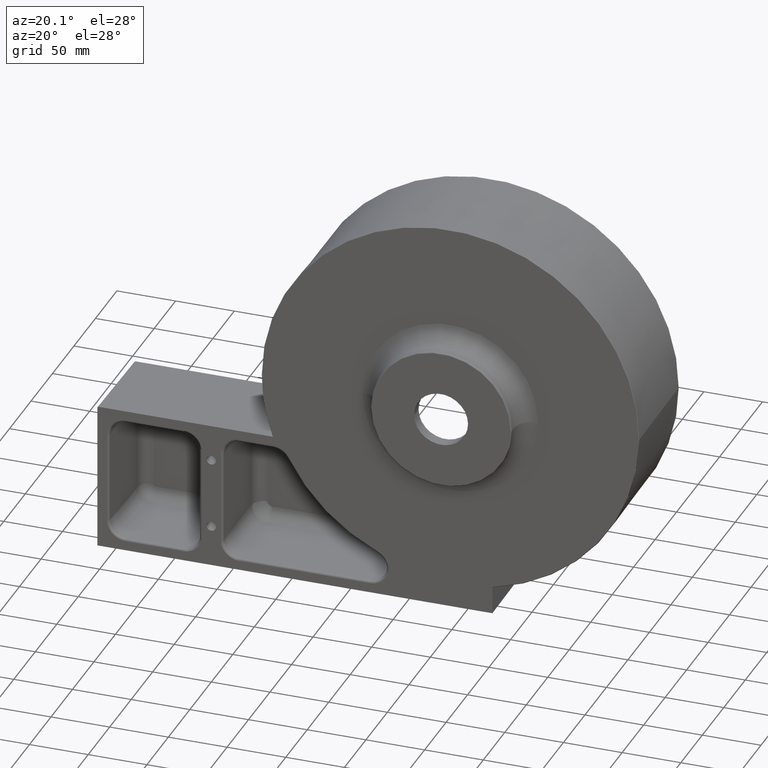
[diagram: clean part render]
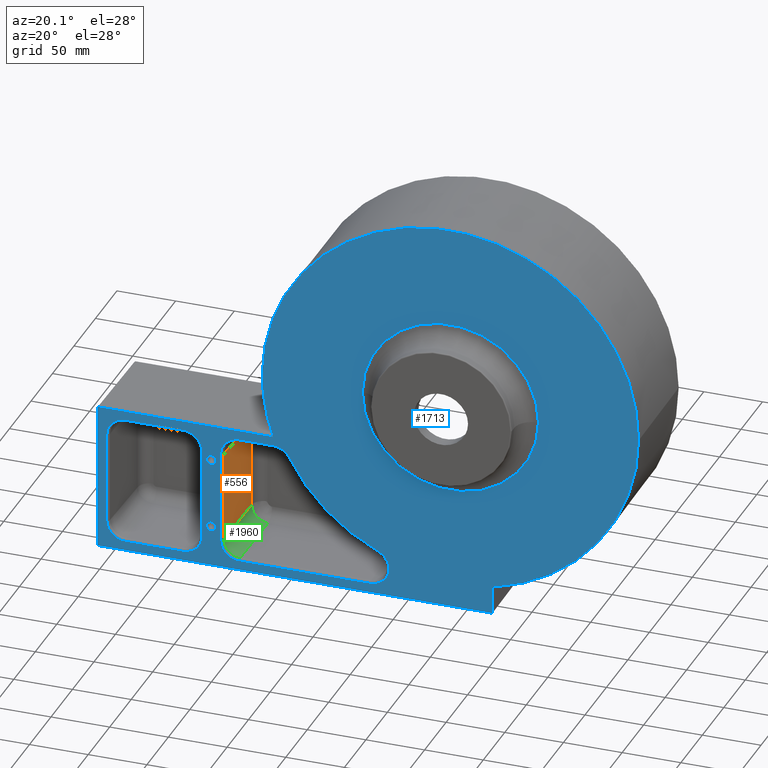
[diagram: same view with three faces highlighted in distinct colors, each labeled with its STEP entity id]
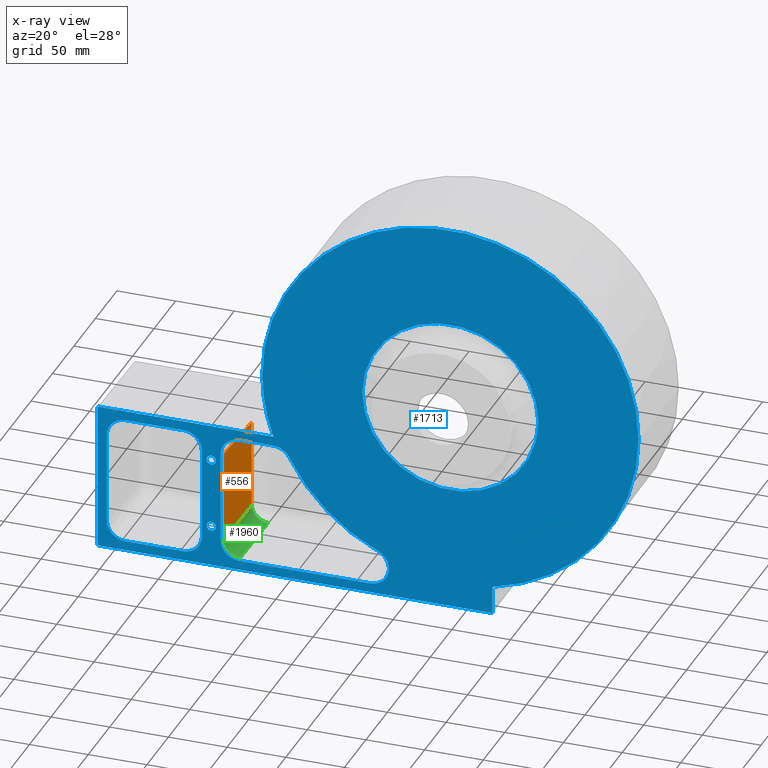
[diagram: x-ray of the same camera — body ghosted, the three highlighted faces saturated]
A machine part, auxiliary view with three faces highlighted in distinct colors.
The next image is the same camera in x-ray (body ghosted, the three faces saturated) — at least one of them is partly hidden behind the body in this view.
Their STEP definitions:

[orange] entity #556 — the highlighted planar face has unit normal (0.9997, -0.0262, -0).
#244 = AXIS2_PLACEMENT_3D ( 'NONE', #1115, #2131, #873 ) ;
#309 = ORIENTED_EDGE ( 'NONE', *, *, #981, .F. ) ;
#353 = VECTOR ( 'NONE', #2916, 1000.000000000000227 ) ;
#556 = ADVANCED_FACE ( 'NONE', ( #1868 ), #3167, .T. ) ;
#635 = DIRECTION ( 'NONE',  ( 0.02616798426497950192, 0.9993150019883697555, -0.02616798426497939783 ) ) ;
#660 = VERTEX_POINT ( 'NONE', #1170 ) ;
#689 = CARTESIAN_POINT ( 'NONE',  ( -52.84608100395885089, 23.74703707613693737, -64.25821623778548997 ) ) ;
#767 = VECTOR ( 'NONE', #2828, 1000.000000000000000 ) ;
#873 = DIRECTION ( 'NONE',  ( -0.02617694830787332949, -0.9996573249755572599, 0.0000000000000000000 ) ) ;
#916 = DIRECTION ( 'NONE',  ( 2.624844657249581056E-16, -3.158525108795066252E-32, 1.000000000000000000 ) ) ;
#981 = EDGE_CURVE ( 'NONE', #2170, #660, #3080, .T. ) ;
#999 = LINE ( 'NONE', #2758, #767 ) ;
#1040 = EDGE_CURVE ( 'NONE', #660, #1652, #2405, .T. ) ;
#1115 = CARTESIAN_POINT ( 'NONE',  ( -52.89708191206660359, 21.79939097275268622, -64.25821623778548997 ) ) ;
#1151 = CARTESIAN_POINT ( 'NONE',  ( -51.26670009962391816, 84.06116045583145535, -154.3744156378994603 ) ) ;
#1170 = CARTESIAN_POINT ( 'NONE',  ( -52.84608100395885089, 23.74703707613693737, -155.9537965422344143 ) ) ;
#1193 = VECTOR ( 'NONE', #635, 1000.000000000000227 ) ;
#1413 = LINE ( 'NONE', #1900, #1193 ) ;
#1518 = VECTOR ( 'NONE', #916, 1000.000000000000000 ) ;
#1545 = CARTESIAN_POINT ( 'NONE',  ( -52.83425721113196971, 24.19856950724317457, -155.9419727494075119 ) ) ;
#1652 = VERTEX_POINT ( 'NONE', #1787 ) ;
#1770 = ORIENTED_EDGE ( 'NONE', *, *, #1994, .F. ) ;
#1787 = CARTESIAN_POINT ( 'NONE',  ( -52.84608100395885089, 23.74703707613693737, -78.30441969555103299 ) ) ;
#1868 = FACE_OUTER_BOUND ( 'NONE', #2665, .T. ) ;
#1900 = CARTESIAN_POINT ( 'NONE',  ( -52.90666531455509869, 21.43341559689432074, -78.24383538495480650 ) ) ;
#1994 = EDGE_CURVE ( 'NONE', #2385, #2170, #999, .T. ) ;
#2108 = ORIENTED_EDGE ( 'NONE', *, *, #2178, .F. ) ;
#2131 = DIRECTION ( 'NONE',  ( 0.9996573249755573709, -0.02617694830787333296, -2.623945188542499751E-16 ) ) ;
#2170 = VERTEX_POINT ( 'NONE', #1151 ) ;
#2178 = EDGE_CURVE ( 'NONE', #1652, #2385, #1413, .T. ) ;
#2385 = VERTEX_POINT ( 'NONE', #2809 ) ;
#2405 = LINE ( 'NONE', #689, #1518 ) ;
#2477 = ORIENTED_EDGE ( 'NONE', *, *, #1040, .F. ) ;
#2665 = EDGE_LOOP ( 'NONE', ( #309, #1770, #2108, #2477 ) ) ;
#2758 = CARTESIAN_POINT ( 'NONE',  ( -51.26670009962391816, 84.06116045583142693, -154.1194110973607110 ) ) ;
#2809 = CARTESIAN_POINT ( 'NONE',  ( -51.26670009962391816, 84.06116045583144114, -79.88380059988597282 ) ) ;
#2828 = DIRECTION ( 'NONE',  ( -2.624844657249581056E-16, 3.158525108795066252E-32, -1.000000000000000000 ) ) ;
#2916 = DIRECTION ( 'NONE',  ( -0.02616798426497951580, -0.9993150019883697555, -0.02616798426497939090 ) ) ;
#3080 = LINE ( 'NONE', #1545, #353 ) ;
#3167 = PLANE ( 'NONE',  #244 ) ;

[blue] entity #1713 — the highlighted planar face has unit normal (-0, -1, 0).
#9 = ORIENTED_EDGE ( 'NONE', *, *, #2908, .F. ) ;
#35 = LINE ( 'NONE', #648, #2687 ) ;
#50 = EDGE_CURVE ( 'NONE', #2653, #2890, #2028, .T. ) ;
#56 = CARTESIAN_POINT ( 'NONE',  ( -70.94876817022324644, 21.79939097275268622, -155.9537965422344143 ) ) ;
#59 = VECTOR ( 'NONE', #1752, 1000.000000000000000 ) ;
#70 = CARTESIAN_POINT ( 'NONE',  ( -38.85087845430101794, 21.79939097275268267, -62.30990249594211150 ) ) ;
#71 = CARTESIAN_POINT ( 'NONE',  ( -38.85087845430107478, 21.79939097275268267, -171.9483137418433216 ) ) ;
#74 = CARTESIAN_POINT ( 'NONE',  ( -54.84539565391000338, 21.79939097275268622, -155.9537965422344143 ) ) ;
#82 = CIRCLE ( 'NONE', #1937, 75.00000000000004263 ) ;
#85 = DIRECTION ( 'NONE',  ( -1.000000000000000000, 0.0000000000000000000, 0.0000000000000000000 ) ) ;
#107 = CARTESIAN_POINT ( 'NONE',  ( -158.8971199890025048, 21.79939097275269688, -54.25821623778548997 ) ) ;
#109 = EDGE_CURVE ( 'NONE', #943, #363, #361, .T. ) ;
#117 = LINE ( 'NONE', #2139, #1746 ) ;
#129 = EDGE_LOOP ( 'NONE', ( #1783, #2961, #421, #510, #1000, #1865, #1439, #1414, #1008 ) ) ;
#159 = CIRCLE ( 'NONE', #371, 15.94831374184332873 ) ;
#165 = CIRCLE ( 'NONE', #2997, 160.3160192545639404 ) ;
#170 =( BOUNDED_CURVE ( )  B_SPLINE_CURVE ( 3, ( #2325, #1799, #558, #2341 ),
 .UNSPECIFIED., .F., .T. ) 
 B_SPLINE_CURVE_WITH_KNOTS ( ( 4, 4 ),
 ( 5.498129760120311182, 6.283185307179586232 ),
 .UNSPECIFIED. ) 
 CURVE ( )  GEOMETRIC_REPRESENTATION_ITEM ( )  RATIONAL_B_SPLINE_CURVE ( ( 1.000000000000000000, 0.9492967171685294803, 0.9492967171685294803, 1.000000000000000000 ) ) 
 REPRESENTATION_ITEM ( '' )  );
#178 = ORIENTED_EDGE ( 'NONE', *, *, #1332, .F. ) ;
#200 = VERTEX_POINT ( 'NONE', #954 ) ;
#201 = CARTESIAN_POINT ( 'NONE',  ( -38.90187936240877065, 21.79939097275268267, -62.30990249594211150 ) ) ;
#202 = VERTEX_POINT ( 'NONE', #1472 ) ;
#212 = VERTEX_POINT ( 'NONE', #2681 ) ;
#255 = ORIENTED_EDGE ( 'NONE', *, *, #433, .F. ) ;
#273 = CARTESIAN_POINT ( 'NONE',  ( -75.63278917098348586, 21.79939097275268622, -167.2642927410831248 ) ) ;
#328 = DIRECTION ( 'NONE',  ( -1.000000000000000000, 2.175431840703557968E-16, -5.221036417688538926E-15 ) ) ;
#330 = EDGE_CURVE ( 'NONE', #461, #2290, #2314, .T. ) ;
#334 = CARTESIAN_POINT ( 'NONE',  ( -75.63278917098348586, 21.79939097275268622, -167.2642927410831248 ) ) ;
#336 = VERTEX_POINT ( 'NONE', #273 ) ;
#338 = LINE ( 'NONE', #2646, #2402 ) ;
#343 = ORIENTED_EDGE ( 'NONE', *, *, #3160, .T. ) ;
#361 = LINE ( 'NONE', #862, #1195 ) ;
#363 = VERTEX_POINT ( 'NONE', #990 ) ;
#371 = AXIS2_PLACEMENT_3D ( 'NONE', #446, #1263, #3282 ) ;
#388 = EDGE_CURVE ( 'NONE', #524, #2991, #564, .T. ) ;
#414 = EDGE_CURVE ( 'NONE', #1721, #1523, #2974, .T. ) ;
#421 = ORIENTED_EDGE ( 'NONE', *, *, #2917, .F. ) ;
#433 = EDGE_CURVE ( 'NONE', #2890, #821, #1258, .T. ) ;
#446 = CARTESIAN_POINT ( 'NONE',  ( -135.8970819120665965, 21.79939097275269688, -155.9999999999999716 ) ) ;
#449 = DIRECTION ( 'NONE',  ( -1.214623636765614367E-16, -1.000000000000000000, -0.0000000000000000000 ) ) ;
#459 = CARTESIAN_POINT ( 'NONE',  ( -10.42723211647070336, 21.79939097275267912, -78.25821623778547576 ) ) ;
#461 = VERTEX_POINT ( 'NONE', #2849 ) ;
#465 = CARTESIAN_POINT ( 'NONE',  ( -50.16137465314974264, 21.79939097275267912, -66.99392349670230828 ) ) ;
#470 = DIRECTION ( 'NONE',  ( -1.000000000000000000, 1.123760614446561448E-16, 0.0000000000000000000 ) ) ;
#483 = CARTESIAN_POINT ( 'NONE',  ( -159.8970819120666818, 21.79939097275270043, -55.25817816084966694 ) ) ;
#500 = LINE ( 'NONE', #1515, #1624 ) ;
#510 = ORIENTED_EDGE ( 'NONE', *, *, #1405, .F. ) ;
#514 = VERTEX_POINT ( 'NONE', #1088 ) ;
#521 = LINE ( 'NONE', #1237, #59 ) ;
#524 = VERTEX_POINT ( 'NONE', #2361 ) ;
#541 = EDGE_CURVE ( 'NONE', #699, #993, #2226, .T. ) ;
#558 = CARTESIAN_POINT ( 'NONE',  ( -78.67207643849769738, 21.79939097275268622, -170.3035800085973790 ) ) ;
#564 = CIRCLE ( 'NONE', #2044, 75.00000000000004263 ) ;
#567 = DIRECTION ( 'NONE',  ( 1.000000000000000000, -1.298477956757840866E-16, 0.0000000000000000000 ) ) ;
#570 = CARTESIAN_POINT ( 'NONE',  ( -70.94876817022324644, 21.79939097275268622, -155.9537965422344143 ) ) ;
#592 = EDGE_LOOP ( 'NONE', ( #2903, #2798, #1646, #1551, #343, #1690, #3127, #1071 ) ) ;
#598 = DIRECTION ( 'NONE',  ( -1.000000000000000000, 0.0000000000000000000, 0.0000000000000000000 ) ) ;
#604 = DIRECTION ( 'NONE',  ( -1.214623636765614367E-16, -1.000000000000000000, 0.0000000000000000000 ) ) ;
#606 = VERTEX_POINT ( 'NONE', #1154 ) ;
#608 = DIRECTION ( 'NONE',  ( 1.000000000000000000, -1.214623636765614367E-16, -1.328815102230828392E-16 ) ) ;
#630 = ORIENTED_EDGE ( 'NONE', *, *, #388, .F. ) ;
#634 = CARTESIAN_POINT ( 'NONE',  ( -158.8971199890025048, 21.79939097275269688, -54.25821623778548997 ) ) ;
#648 = CARTESIAN_POINT ( 'NONE',  ( -54.84539565390994653, 21.79939097275268622, 5.136561069101757962E-14 ) ) ;
#649 = VERTEX_POINT ( 'NONE', #907 ) ;
#661 = AXIS2_PLACEMENT_3D ( 'NONE', #963, #449, #3044 ) ;
#666 = AXIS2_PLACEMENT_3D ( 'NONE', #1104, #604, #1089 ) ;
#699 = VERTEX_POINT ( 'NONE', #483 ) ;
#723 =( BOUNDED_CURVE ( )  B_SPLINE_CURVE ( 3, ( #1266, #1012, #2278, #465 ),
 .UNSPECIFIED., .F., .T. ) 
 B_SPLINE_CURVE_WITH_KNOTS ( ( 4, 4 ),
 ( 5.498129760120305853, 6.283185307179586232 ),
 .UNSPECIFIED. ) 
 CURVE ( )  GEOMETRIC_REPRESENTATION_ITEM ( )  RATIONAL_B_SPLINE_CURVE ( ( 1.000000000000000000, 0.9492967171685287031, 0.9492967171685287031, 1.000000000000000000 ) ) 
 REPRESENTATION_ITEM ( '' )  );
#749 = CARTESIAN_POINT ( 'NONE',  ( -70.94876817022327486, 21.79939097275268622, -78.30441969555101878 ) ) ;
#763 = VERTEX_POINT ( 'NONE', #2791 ) ;
#777 = DIRECTION ( 'NONE',  ( -1.214623636765614367E-16, -1.000000000000000000, -0.0000000000000000000 ) ) ;
#781 = EDGE_CURVE ( 'NONE', #1806, #699, #500, .T. ) ;
#783 = CARTESIAN_POINT ( 'NONE',  ( -135.8970819120665965, 21.79939097275269688, -78.25821623778544733 ) ) ;
#801 = DIRECTION ( 'NONE',  ( 1.214623636765614367E-16, 1.000000000000000000, -0.0000000000000000000 ) ) ;
#812 = DIRECTION ( 'NONE',  ( 1.214623636765614367E-16, 1.000000000000000000, -0.0000000000000000000 ) ) ;
#819 = CARTESIAN_POINT ( 'NONE',  ( -53.20066192066398258, 21.79939097275268267, -70.03321076421654823 ) ) ;
#821 = VERTEX_POINT ( 'NONE', #1530 ) ;
#833 = CARTESIAN_POINT ( 'NONE',  ( -62.89708191206663912, 21.79939097275268622, -145.0000000000000000 ) ) ;
#858 = FACE_BOUND ( 'NONE', #2137, .T. ) ;
#861 = EDGE_CURVE ( 'NONE', #202, #1053, #1059, .T. ) ;
#862 = CARTESIAN_POINT ( 'NONE',  ( 72.49598997698230107, 21.79939097275266846, -171.9483137418433500 ) ) ;
#881 = EDGE_CURVE ( 'NONE', #336, #895, #1993, .T. ) ;
#895 = VERTEX_POINT ( 'NONE', #570 ) ;
#896 = DIRECTION ( 'NONE',  ( -1.214623636765614367E-16, -1.000000000000000000, 0.0000000000000000000 ) ) ;
#907 = CARTESIAN_POINT ( 'NONE',  ( 78.89613193412171199, 21.79939097275266846, -141.3922317195016092 ) ) ;
#914 = EDGE_LOOP ( 'NONE', ( #2513, #2241 ) ) ;
#923 = VECTOR ( 'NONE', #1954, 1000.000000000000000 ) ;
#939 = CARTESIAN_POINT ( 'NONE',  ( 176.5864856123623952, 21.79939097275265780, -180.0000000000000000 ) ) ;
#943 = VERTEX_POINT ( 'NONE', #71 ) ;
#954 = CARTESIAN_POINT ( 'NONE',  ( -135.8970819120667102, 21.79939097275269688, -171.9483137418433216 ) ) ;
#963 = CARTESIAN_POINT ( 'NONE',  ( 140.8447018501478851, 21.79939097275267201, 0.0000000000000000000 ) ) ;
#990 = CARTESIAN_POINT ( 'NONE',  ( 72.49598997698230107, 21.79939097275266846, -171.9483137418433500 ) ) ;
#993 = VERTEX_POINT ( 'NONE', #634 ) ;
#997 = EDGE_CURVE ( 'NONE', #212, #3234, #2154, .T. ) ;
#1000 = ORIENTED_EDGE ( 'NONE', *, *, #861, .F. ) ;
#1002 = DIRECTION ( 'NONE',  ( -1.000000000000000000, 1.214623636765614367E-16, 1.110463690054878025E-16 ) ) ;
#1008 = ORIENTED_EDGE ( 'NONE', *, *, #2806, .F. ) ;
#1010 = DIRECTION ( 'NONE',  ( -1.214623636765614367E-16, -1.000000000000000000, -0.0000000000000000000 ) ) ;
#1012 = CARTESIAN_POINT ( 'NONE',  ( -43.15055210964558086, 21.79939097275268267, -62.30990249594211150 ) ) ;
#1046 = DIRECTION ( 'NONE',  ( -1.214623636765614367E-16, -1.000000000000000000, -0.0000000000000000000 ) ) ;
#1053 = VERTEX_POINT ( 'NONE', #1629 ) ;
#1058 = CIRCLE ( 'NONE', #1480, 3.999999999999989786 ) ;
#1059 =( BOUNDED_CURVE ( )  B_SPLINE_CURVE ( 3, ( #1847, #819, #2336, #1831 ),
 .UNSPECIFIED., .F., .T. ) 
 B_SPLINE_CURVE_WITH_KNOTS ( ( 4, 4 ),
 ( 0.0000000000000000000, 0.7850555470592797125 ),
 .UNSPECIFIED. ) 
 CURVE ( )  GEOMETRIC_REPRESENTATION_ITEM ( )  RATIONAL_B_SPLINE_CURVE ( ( 1.000000000000000000, 0.9492967171685287031, 0.9492967171685287031, 1.000000000000000000 ) ) 
 REPRESENTATION_ITEM ( '' )  );
#1061 = DIRECTION ( 'NONE',  ( 1.000000000000000000, -1.214623636765614367E-16, -1.328815102230828392E-16 ) ) ;
#1070 = FACE_OUTER_BOUND ( 'NONE', #592, .T. ) ;
#1071 = ORIENTED_EDGE ( 'NONE', *, *, #541, .F. ) ;
#1088 = CARTESIAN_POINT ( 'NONE',  ( -86.94328536983213951, 21.79939097275268978, -171.9483137418433216 ) ) ;
#1089 = DIRECTION ( 'NONE',  ( -1.000000000000000000, 2.175431840703554270E-16, 0.0000000000000000000 ) ) ;
#1103 = CARTESIAN_POINT ( 'NONE',  ( -159.8970819120666249, 21.79939097275269688, -54.67240479007110565 ) ) ;
#1104 = CARTESIAN_POINT ( 'NONE',  ( 72.49598997698230107, 21.79939097275266846, -155.9999999999999716 ) ) ;
#1118 = CARTESIAN_POINT ( 'NONE',  ( -19.47131740441601622, 21.79939097275269333, -1.966366498742345683E-14 ) ) ;
#1135 = CIRCLE ( 'NONE', #666, 15.94831374184338380 ) ;
#1154 = CARTESIAN_POINT ( 'NONE',  ( -54.84539565391000338, 21.79939097275268622, -155.9537965422344143 ) ) ;
#1160 = ORIENTED_EDGE ( 'NONE', *, *, #50, .F. ) ;
#1166 = VECTOR ( 'NONE', #2497, 1000.000000000000000 ) ;
#1191 = CARTESIAN_POINT ( 'NONE',  ( -10.01043396008369157, 21.79939097275268978, -54.25821623778548997 ) ) ;
#1195 = VECTOR ( 'NONE', #608, 1000.000000000000000 ) ;
#1197 = VECTOR ( 'NONE', #1002, 1000.000000000000000 ) ;
#1221 = CARTESIAN_POINT ( 'NONE',  ( -86.94328536983222477, 21.79939097275268978, -62.30990249594210439 ) ) ;
#1237 = CARTESIAN_POINT ( 'NONE',  ( -151.8453956539098897, 21.79939097275269688, -155.9999999999999716 ) ) ;
#1258 = LINE ( 'NONE', #2271, #1197 ) ;
#1263 = DIRECTION ( 'NONE',  ( -1.214623636765614367E-16, -1.000000000000000000, 0.0000000000000000000 ) ) ;
#1266 = CARTESIAN_POINT ( 'NONE',  ( -38.85087845430101794, 21.79939097275268267, -62.30990249594211150 ) ) ;
#1268 = EDGE_CURVE ( 'NONE', #763, #2769, #1556, .T. ) ;
#1272 = EDGE_CURVE ( 'NONE', #2423, #202, #723, .T. ) ;
#1314 = ORIENTED_EDGE ( 'NONE', *, *, #2914, .F. ) ;
#1320 = CARTESIAN_POINT ( 'NONE',  ( -72.59350190346927434, 21.79939097275268978, -164.2250054735688991 ) ) ;
#1329 = CIRCLE ( 'NONE', #2500, 15.94831374184335715 ) ;
#1332 = EDGE_CURVE ( 'NONE', #200, #514, #2089, .T. ) ;
#1333 = EDGE_CURVE ( 'NONE', #1843, #1806, #2415, .T. ) ;
#1355 = DIRECTION ( 'NONE',  ( 0.0000000000000000000, 0.0000000000000000000, 1.000000000000000000 ) ) ;
#1363 = CARTESIAN_POINT ( 'NONE',  ( -70.94876817022327486, 21.79939097275268267, -68.93371927133823363 ) ) ;
#1367 = DIRECTION ( 'NONE',  ( 1.000000000000000000, -1.387778780781444936E-16, 0.0000000000000000000 ) ) ;
#1375 = CARTESIAN_POINT ( 'NONE',  ( -159.4828933597810590, 21.79939097275269688, -54.25821623778551839 ) ) ;
#1377 = ORIENTED_EDGE ( 'NONE', *, *, #2573, .F. ) ;
#1405 = EDGE_CURVE ( 'NONE', #1053, #606, #35, .T. ) ;
#1414 = ORIENTED_EDGE ( 'NONE', *, *, #330, .F. ) ;
#1431 = CIRCLE ( 'NONE', #2346, 154.3677055127205620 ) ;
#1438 = CARTESIAN_POINT ( 'NONE',  ( 140.8447018501478851, 21.79939097275266136, -54.25821623778548997 ) ) ;
#1439 = ORIENTED_EDGE ( 'NONE', *, *, #2620, .F. ) ;
#1472 = CARTESIAN_POINT ( 'NONE',  ( -50.16137465314974264, 21.79939097275267912, -66.99392349670230828 ) ) ;
#1480 = AXIS2_PLACEMENT_3D ( 'NONE', #833, #812, #2581 ) ;
#1487 = EDGE_CURVE ( 'NONE', #993, #1523, #2172, .T. ) ;
#1491 = EDGE_LOOP ( 'NONE', ( #255, #1160, #1536, #2704, #1314, #178, #1377, #9, #2740 ) ) ;
#1514 = AXIS2_PLACEMENT_3D ( 'NONE', #3292, #777, #1549 ) ;
#1515 = CARTESIAN_POINT ( 'NONE',  ( -159.8970819120666818, 21.79939097275270043, 0.0000000000000000000 ) ) ;
#1523 = VERTEX_POINT ( 'NONE', #1191 ) ;
#1530 = CARTESIAN_POINT ( 'NONE',  ( -135.8970819120665965, 21.79939097275269688, -62.30990249594209729 ) ) ;
#1536 = ORIENTED_EDGE ( 'NONE', *, *, #3048, .F. ) ;
#1549 = DIRECTION ( 'NONE',  ( 1.000000000000000000, -1.298477956757840866E-16, 0.0000000000000000000 ) ) ;
#1551 = ORIENTED_EDGE ( 'NONE', *, *, #1268, .T. ) ;
#1554 = DIRECTION ( 'NONE',  ( -1.214623636765614367E-16, -1.000000000000000000, 0.0000000000000000000 ) ) ;
#1556 = CIRCLE ( 'NONE', #661, 160.3160192545639404 ) ;
#1559 = DIRECTION ( 'NONE',  ( -1.000000000000000000, 1.242786967863980845E-16, 0.0000000000000000000 ) ) ;
#1605 = CARTESIAN_POINT ( 'NONE',  ( -58.89708191206664623, 21.79939097275268622, -145.0000000000000000 ) ) ;
#1619 = CARTESIAN_POINT ( 'NONE',  ( -54.84539565391001759, 21.79939097275268978, -165.3244969664471853 ) ) ;
#1621 = FACE_BOUND ( 'NONE', #914, .T. ) ;
#1624 = VECTOR ( 'NONE', #2297, 1000.000000000000000 ) ;
#1629 = CARTESIAN_POINT ( 'NONE',  ( -54.84539565390994653, 21.79939097275268622, -78.30441969555103299 ) ) ;
#1641 = DIRECTION ( 'NONE',  ( 0.0000000000000000000, 0.0000000000000000000, -1.000000000000000000 ) ) ;
#1646 = ORIENTED_EDGE ( 'NONE', *, *, #2490, .F. ) ;
#1690 = ORIENTED_EDGE ( 'NONE', *, *, #414, .T. ) ;
#1709 = EDGE_CURVE ( 'NONE', #363, #649, #1135, .T. ) ;
#1713 = ADVANCED_FACE ( 'NONE', ( #858, #1621, #2887, #2613, #1070, #2082 ), #3120, .T. ) ;
#1721 = VERTEX_POINT ( 'NONE', #1118 ) ;
#1746 = VECTOR ( 'NONE', #1641, 1000.000000000000000 ) ;
#1752 = DIRECTION ( 'NONE',  ( 7.140452475472831437E-16, -8.672962353910844267E-32, -1.000000000000000000 ) ) ;
#1766 = CARTESIAN_POINT ( 'NONE',  ( 301.1607211047117971, 21.79939097275265070, 0.0000000000000000000 ) ) ;
#1783 = ORIENTED_EDGE ( 'NONE', *, *, #1709, .F. ) ;
#1794 = DIRECTION ( 'NONE',  ( -2.624844657249581056E-16, 3.188198363533278655E-32, -1.000000000000000000 ) ) ;
#1797 = VERTEX_POINT ( 'NONE', #1605 ) ;
#1799 = CARTESIAN_POINT ( 'NONE',  ( -82.64361171448763344, 21.79939097275268622, -171.9483137418433216 ) ) ;
#1806 = VERTEX_POINT ( 'NONE', #2362 ) ;
#1820 = DIRECTION ( 'NONE',  ( -1.214623636765614367E-16, -1.000000000000000000, 0.0000000000000000000 ) ) ;
#1826 = CARTESIAN_POINT ( 'NONE',  ( 140.8447018501478851, 21.79939097275267201, 0.0000000000000000000 ) ) ;
#1831 = CARTESIAN_POINT ( 'NONE',  ( -54.84539565390994653, 21.79939097275268622, -78.30441969555103299 ) ) ;
#1843 = VERTEX_POINT ( 'NONE', #939 ) ;
#1846 = CARTESIAN_POINT ( 'NONE',  ( 140.8447018501478851, 21.79939097275264359, 0.0000000000000000000 ) ) ;
#1847 = CARTESIAN_POINT ( 'NONE',  ( -50.16137465314974264, 21.79939097275267912, -66.99392349670230828 ) ) ;
#1856 = CARTESIAN_POINT ( 'NONE',  ( -70.94876817022327486, 21.79939097275268622, -78.30441969555101878 ) ) ;
#1861 = CARTESIAN_POINT ( 'NONE',  ( -62.89708191206661070, 21.79939097275268622, -84.99999999999998579 ) ) ;
#1865 = ORIENTED_EDGE ( 'NONE', *, *, #1272, .F. ) ;
#1866 = CARTESIAN_POINT ( 'NONE',  ( 215.8447018501479135, 21.79939097275263649, 0.0000000000000000000 ) ) ;
#1872 = CARTESIAN_POINT ( 'NONE',  ( -77.57258494561943962, 21.79939097275268622, -62.30990249594206887 ) ) ;
#1888 = CARTESIAN_POINT ( 'NONE',  ( 140.8447018501478851, 21.79939097275266136, 0.0000000000000000000 ) ) ;
#1930 = VECTOR ( 'NONE', #1061, 1000.000000000000000 ) ;
#1937 = AXIS2_PLACEMENT_3D ( 'NONE', #1846, #1046, #1367 ) ;
#1954 = DIRECTION ( 'NONE',  ( 1.000000000000000000, -1.214623636765614367E-16, -1.139491522003710415E-19 ) ) ;
#1959 = CARTESIAN_POINT ( 'NONE',  ( -151.8453956539099465, 21.79939097275269688, -78.25821623778541891 ) ) ;
#1984 = CARTESIAN_POINT ( 'NONE',  ( 140.8447018501478851, 21.79939097275266136, 0.0000000000000000000 ) ) ;
#1993 =( BOUNDED_CURVE ( )  B_SPLINE_CURVE ( 3, ( #334, #1320, #2623, #56 ),
 .UNSPECIFIED., .F., .T. ) 
 B_SPLINE_CURVE_WITH_KNOTS ( ( 4, 4 ),
 ( 5.421010862427521184E-16, 0.7850555470592803786 ),
 .UNSPECIFIED. ) 
 CURVE ( )  GEOMETRIC_REPRESENTATION_ITEM ( )  RATIONAL_B_SPLINE_CURVE ( ( 1.000000000000000000, 0.9492967171685287031, 0.9492967171685287031, 1.000000000000000000 ) ) 
 REPRESENTATION_ITEM ( '' )  );
#2004 = ORIENTED_EDGE ( 'NONE', *, *, #997, .T. ) ;
#2006 = LINE ( 'NONE', #201, #1166 ) ;
#2010 = CIRCLE ( 'NONE', #2771, 3.999999999999989786 ) ;
#2028 =( BOUNDED_CURVE ( )  B_SPLINE_CURVE ( 3, ( #1856, #1363, #1872, #2365 ),
 .UNSPECIFIED., .F., .T. ) 
 B_SPLINE_CURVE_WITH_KNOTS ( ( 4, 4 ),
 ( 2.356537106530513626, 3.926648200649075271 ),
 .UNSPECIFIED. ) 
 CURVE ( )  GEOMETRIC_REPRESENTATION_ITEM ( )  RATIONAL_B_SPLINE_CURVE ( ( 1.000000000000000000, 0.8048993373437793863, 0.8048993373437793863, 1.000000000000000000 ) ) 
 REPRESENTATION_ITEM ( '' )  );
#2044 = AXIS2_PLACEMENT_3D ( 'NONE', #2286, #2237, #3084 ) ;
#2075 =( BOUNDED_CURVE ( )  B_SPLINE_CURVE ( 3, ( #74, #1619, #2378, #3083 ),
 .UNSPECIFIED., .F., .T. ) 
 B_SPLINE_CURVE_WITH_KNOTS ( ( 4, 4 ),
 ( 2.356537106530513181, 3.926648200649073495 ),
 .UNSPECIFIED. ) 
 CURVE ( )  GEOMETRIC_REPRESENTATION_ITEM ( )  RATIONAL_B_SPLINE_CURVE ( ( 1.000000000000000000, 0.8048993373437796084, 0.8048993373437796084, 1.000000000000000000 ) ) 
 REPRESENTATION_ITEM ( '' )  );
#2082 = FACE_BOUND ( 'NONE', #2857, .T. ) ;
#2089 = LINE ( 'NONE', #2860, #1930 ) ;
#2126 = DIRECTION ( 'NONE',  ( -1.000000000000000000, 0.0000000000000000000, 0.0000000000000000000 ) ) ;
#2137 = EDGE_LOOP ( 'NONE', ( #2004, #2503 ) ) ;
#2139 = CARTESIAN_POINT ( 'NONE',  ( 176.5864856123623667, 21.79939097275265780, 0.0000000000000000000 ) ) ;
#2154 = CIRCLE ( 'NONE', #2979, 3.999999999999989786 ) ;
#2164 = DIRECTION ( 'NONE',  ( 1.214623636765614367E-16, 1.000000000000000000, -0.0000000000000000000 ) ) ;
#2172 = LINE ( 'NONE', #1438, #923 ) ;
#2226 =( BOUNDED_CURVE ( )  B_SPLINE_CURVE ( 3, ( #2647, #1103, #1375, #107 ),
 .UNSPECIFIED., .F., .T. ) 
 B_SPLINE_CURVE_WITH_KNOTS ( ( 4, 4 ),
 ( 5.497825219993081269, 7.068545394366056556 ),
 .UNSPECIFIED. ) 
 CURVE ( )  GEOMETRIC_REPRESENTATION_ITEM ( )  RATIONAL_B_SPLINE_CURVE ( ( 1.000000000000000000, 0.8047558030806214457, 0.8047558030806214457, 1.000000000000000000 ) ) 
 REPRESENTATION_ITEM ( '' )  );
#2229 = CARTESIAN_POINT ( 'NONE',  ( -10.42723211647064652, 21.79939097275267912, -62.30990249594211150 ) ) ;
#2237 = DIRECTION ( 'NONE',  ( -1.214623636765614367E-16, -1.000000000000000000, -0.0000000000000000000 ) ) ;
#2241 = ORIENTED_EDGE ( 'NONE', *, *, #2446, .T. ) ;
#2271 = CARTESIAN_POINT ( 'NONE',  ( -135.8970819120665965, 21.79939097275269688, -62.30990249594209729 ) ) ;
#2278 = CARTESIAN_POINT ( 'NONE',  ( -47.12208738563550980, 21.79939097275268267, -63.95463622918808255 ) ) ;
#2286 = CARTESIAN_POINT ( 'NONE',  ( 140.8447018501478851, 21.79939097275264359, 0.0000000000000000000 ) ) ;
#2290 = VERTEX_POINT ( 'NONE', #2229 ) ;
#2295 = CARTESIAN_POINT ( 'NONE',  ( 175.8447018501478851, 21.79939097275265780, -180.0000000000000000 ) ) ;
#2297 = DIRECTION ( 'NONE',  ( 0.0000000000000000000, 0.0000000000000000000, 1.000000000000000000 ) ) ;
#2314 = CIRCLE ( 'NONE', #2529, 15.94831374184337314 ) ;
#2325 = CARTESIAN_POINT ( 'NONE',  ( -86.94328536983213951, 21.79939097275268978, -171.9483137418433216 ) ) ;
#2336 = CARTESIAN_POINT ( 'NONE',  ( -54.84539565390996074, 21.79939097275268622, -74.00474604020647007 ) ) ;
#2341 = CARTESIAN_POINT ( 'NONE',  ( -75.63278917098348586, 21.79939097275268622, -167.2642927410831248 ) ) ;
#2346 = AXIS2_PLACEMENT_3D ( 'NONE', #1984, #3051, #470 ) ;
#2361 = CARTESIAN_POINT ( 'NONE',  ( 65.84470185014782828, 21.79939097275265780, -9.184850993605151889E-15 ) ) ;
#2362 = CARTESIAN_POINT ( 'NONE',  ( -159.8970819120666249, 21.79939097275270043, -180.0000000000000000 ) ) ;
#2365 = CARTESIAN_POINT ( 'NONE',  ( -86.94328536983222477, 21.79939097275268978, -62.30990249594210439 ) ) ;
#2369 = CARTESIAN_POINT ( 'NONE',  ( -66.89708191206662491, 21.79939097275268622, -145.0000000000000000 ) ) ;
#2372 = CIRCLE ( 'NONE', #3224, 3.999999999999989786 ) ;
#2378 = CARTESIAN_POINT ( 'NONE',  ( -48.22157887851385993, 21.79939097275268267, -171.9483137418433500 ) ) ;
#2402 = VECTOR ( 'NONE', #1355, 1000.000000000000000 ) ;
#2414 = EDGE_CURVE ( 'NONE', #2991, #524, #82, .T. ) ;
#2415 = LINE ( 'NONE', #2295, #2576 ) ;
#2423 = VERTEX_POINT ( 'NONE', #70 ) ;
#2446 = EDGE_CURVE ( 'NONE', #1797, #3275, #2372, .T. ) ;
#2469 = EDGE_CURVE ( 'NONE', #3234, #212, #2010, .T. ) ;
#2490 = EDGE_CURVE ( 'NONE', #763, #1843, #117, .T. ) ;
#2493 = DIRECTION ( 'NONE',  ( -1.000000000000000000, 2.175431840703555750E-16, 0.0000000000000000000 ) ) ;
#2497 = DIRECTION ( 'NONE',  ( -1.000000000000000000, 1.214623636765614367E-16, 1.110463690054878025E-16 ) ) ;
#2500 = AXIS2_PLACEMENT_3D ( 'NONE', #783, #1554, #328 ) ;
#2503 = ORIENTED_EDGE ( 'NONE', *, *, #2469, .T. ) ;
#2513 = ORIENTED_EDGE ( 'NONE', *, *, #2744, .T. ) ;
#2522 = CARTESIAN_POINT ( 'NONE',  ( -151.8453956539099465, 21.79939097275269688, -155.9999999999999716 ) ) ;
#2529 = AXIS2_PLACEMENT_3D ( 'NONE', #459, #896, #2493 ) ;
#2570 = CARTESIAN_POINT ( 'NONE',  ( -62.89708191206663912, 21.79939097275268622, -145.0000000000000000 ) ) ;
#2573 = EDGE_CURVE ( 'NONE', #2873, #200, #159, .T. ) ;
#2576 = VECTOR ( 'NONE', #1559, 1000.000000000000000 ) ;
#2581 = DIRECTION ( 'NONE',  ( -1.000000000000000000, 0.0000000000000000000, 0.0000000000000000000 ) ) ;
#2585 = CARTESIAN_POINT ( 'NONE',  ( -58.89708191206661780, 21.79939097275268622, -84.99999999999998579 ) ) ;
#2613 = FACE_BOUND ( 'NONE', #1491, .T. ) ;
#2620 = EDGE_CURVE ( 'NONE', #2290, #2423, #2006, .T. ) ;
#2623 = CARTESIAN_POINT ( 'NONE',  ( -70.94876817022330329, 21.79939097275268622, -160.2534701975789631 ) ) ;
#2631 = VERTEX_POINT ( 'NONE', #1959 ) ;
#2646 = CARTESIAN_POINT ( 'NONE',  ( -70.94876817022324644, 21.79939097275268622, 0.0000000000000000000 ) ) ;
#2647 = CARTESIAN_POINT ( 'NONE',  ( -159.8970819120666818, 21.79939097275270043, -55.25817816084966694 ) ) ;
#2648 = DIRECTION ( 'NONE',  ( -1.000000000000000000, 1.214623636765614367E-16, 0.0000000000000000000 ) ) ;
#2653 = VERTEX_POINT ( 'NONE', #749 ) ;
#2681 = CARTESIAN_POINT ( 'NONE',  ( -66.89708191206659649, 21.79939097275268622, -84.99999999999998579 ) ) ;
#2687 = VECTOR ( 'NONE', #1794, 1000.000000000000000 ) ;
#2704 = ORIENTED_EDGE ( 'NONE', *, *, #881, .F. ) ;
#2736 = AXIS2_PLACEMENT_3D ( 'NONE', #1888, #1820, #2648 ) ;
#2740 = ORIENTED_EDGE ( 'NONE', *, *, #2760, .F. ) ;
#2744 = EDGE_CURVE ( 'NONE', #3275, #1797, #1058, .T. ) ;
#2760 = EDGE_CURVE ( 'NONE', #821, #2631, #1329, .T. ) ;
#2769 = VERTEX_POINT ( 'NONE', #1766 ) ;
#2771 = AXIS2_PLACEMENT_3D ( 'NONE', #1861, #2896, #598 ) ;
#2791 = CARTESIAN_POINT ( 'NONE',  ( 176.5864856123623667, 21.79939097275266846, -156.2809998788233941 ) ) ;
#2798 = ORIENTED_EDGE ( 'NONE', *, *, #1333, .F. ) ;
#2806 = EDGE_CURVE ( 'NONE', #649, #461, #1431, .T. ) ;
#2849 = CARTESIAN_POINT ( 'NONE',  ( 3.737802234344750119, 21.79939097275267912, -70.93015284774250517 ) ) ;
#2852 = ORIENTED_EDGE ( 'NONE', *, *, #2414, .F. ) ;
#2857 = EDGE_LOOP ( 'NONE', ( #2852, #630 ) ) ;
#2860 = CARTESIAN_POINT ( 'NONE',  ( -86.89228446172450049, 21.79939097275268978, -171.9483137418433216 ) ) ;
#2873 = VERTEX_POINT ( 'NONE', #2522 ) ;
#2887 = FACE_BOUND ( 'NONE', #129, .T. ) ;
#2890 = VERTEX_POINT ( 'NONE', #1221 ) ;
#2896 = DIRECTION ( 'NONE',  ( 1.214623636765614367E-16, 1.000000000000000000, -0.0000000000000000000 ) ) ;
#2903 = ORIENTED_EDGE ( 'NONE', *, *, #781, .F. ) ;
#2908 = EDGE_CURVE ( 'NONE', #2631, #2873, #521, .T. ) ;
#2914 = EDGE_CURVE ( 'NONE', #514, #336, #170, .T. ) ;
#2917 = EDGE_CURVE ( 'NONE', #606, #943, #2075, .T. ) ;
#2961 = ORIENTED_EDGE ( 'NONE', *, *, #109, .F. ) ;
#2974 = CIRCLE ( 'NONE', #1514, 160.3160192545639404 ) ;
#2979 = AXIS2_PLACEMENT_3D ( 'NONE', #3222, #2164, #2126 ) ;
#2991 = VERTEX_POINT ( 'NONE', #1866 ) ;
#2997 = AXIS2_PLACEMENT_3D ( 'NONE', #1826, #1010, #567 ) ;
#3044 = DIRECTION ( 'NONE',  ( 1.000000000000000000, -1.298477956757840866E-16, 0.0000000000000000000 ) ) ;
#3048 = EDGE_CURVE ( 'NONE', #895, #2653, #338, .T. ) ;
#3051 = DIRECTION ( 'NONE',  ( 1.214623636765614367E-16, 1.000000000000000000, -0.0000000000000000000 ) ) ;
#3083 = CARTESIAN_POINT ( 'NONE',  ( -38.85087845430107478, 21.79939097275268267, -171.9483137418433216 ) ) ;
#3084 = DIRECTION ( 'NONE',  ( 1.000000000000000000, -1.387778780781444936E-16, 0.0000000000000000000 ) ) ;
#3120 = PLANE ( 'NONE',  #2736 ) ;
#3127 = ORIENTED_EDGE ( 'NONE', *, *, #1487, .F. ) ;
#3160 = EDGE_CURVE ( 'NONE', #2769, #1721, #165, .T. ) ;
#3222 = CARTESIAN_POINT ( 'NONE',  ( -62.89708191206661070, 21.79939097275268622, -84.99999999999998579 ) ) ;
#3224 = AXIS2_PLACEMENT_3D ( 'NONE', #2570, #801, #85 ) ;
#3234 = VERTEX_POINT ( 'NONE', #2585 ) ;
#3275 = VERTEX_POINT ( 'NONE', #2369 ) ;
#3282 = DIRECTION ( 'NONE',  ( -1.000000000000000000, 2.175431840703561912E-16, 0.0000000000000000000 ) ) ;
#3292 = CARTESIAN_POINT ( 'NONE',  ( 140.8447018501478851, 21.79939097275267201, 0.0000000000000000000 ) ) ;

[green] entity #1960 — the highlighted cylindrical surface (edge-blend (fillet) strip) has radius 14 mm, axis along (0.0262, 0.9993, 0.0262).
#22 = VECTOR ( 'NONE', #2996, 1000.000000000000227 ) ;
#87 = EDGE_CURVE ( 'NONE', #2170, #1697, #1890, .T. ) ;
#353 = VECTOR ( 'NONE', #2916, 1000.000000000000227 ) ;
#507 = CARTESIAN_POINT ( 'NONE',  ( -37.27149754996611364, 84.06116045583144114, -168.3696181875572790 ) ) ;
#619 = CARTESIAN_POINT ( 'NONE',  ( -38.85087845430107478, 23.74703707613693737, -169.9489990918922047 ) ) ;
#660 = VERTEX_POINT ( 'NONE', #1170 ) ;
#685 = ORIENTED_EDGE ( 'NONE', *, *, #981, .T. ) ;
#690 = CARTESIAN_POINT ( 'NONE',  ( -38.82559817859240781, 24.71245185605527439, -169.9237188161835377 ) ) ;
#697 = EDGE_LOOP ( 'NONE', ( #1142, #2728, #685, #1287 ) ) ;
#745 =( BOUNDED_CURVE ( )  B_SPLINE_CURVE ( 3, ( #2344, #1589, #3141, #2427 ),
 .UNSPECIFIED., .F., .T. ) 
 B_SPLINE_CURVE_WITH_KNOTS ( ( 4, 4 ),
 ( 2.356537106530512293, 3.926648200649073939 ),
 .UNSPECIFIED. ) 
 CURVE ( )  GEOMETRIC_REPRESENTATION_ITEM ( )  RATIONAL_B_SPLINE_CURVE ( ( 1.000000000000000000, 0.8048993373437793863, 0.8048993373437793863, 1.000000000000000000 ) ) 
 REPRESENTATION_ITEM ( '' )  );
#966 = FACE_OUTER_BOUND ( 'NONE', #697, .T. ) ;
#981 = EDGE_CURVE ( 'NONE', #2170, #660, #3080, .T. ) ;
#1049 = VERTEX_POINT ( 'NONE', #619 ) ;
#1107 = CARTESIAN_POINT ( 'NONE',  ( -37.27149754996611364, 84.06116045583144114, -168.3696181875572790 ) ) ;
#1142 = ORIENTED_EDGE ( 'NONE', *, *, #2264, .T. ) ;
#1151 = CARTESIAN_POINT ( 'NONE',  ( -51.26670009962391816, 84.06116045583145535, -154.3744156378994603 ) ) ;
#1170 = CARTESIAN_POINT ( 'NONE',  ( -52.84608100395885089, 23.74703707613693737, -155.9537965422344143 ) ) ;
#1287 = ORIENTED_EDGE ( 'NONE', *, *, #1813, .F. ) ;
#1545 = CARTESIAN_POINT ( 'NONE',  ( -52.83425721113196971, 24.19856950724317457, -155.9419727494075119 ) ) ;
#1589 = CARTESIAN_POINT ( 'NONE',  ( -47.05104341457320061, 23.71640652972612884, -169.9498011809781701 ) ) ;
#1593 = CARTESIAN_POINT ( 'NONE',  ( -45.46684997572263143, 84.21431318788542342, -168.3656077421276223 ) ) ;
#1697 = VERTEX_POINT ( 'NONE', #507 ) ;
#1748 = CARTESIAN_POINT ( 'NONE',  ( -38.82559817859240781, 24.34597457974505019, -155.9285162665257474 ) ) ;
#1813 = EDGE_CURVE ( 'NONE', #1049, #660, #745, .T. ) ;
#1890 =( BOUNDED_CURVE ( )  B_SPLINE_CURVE ( 3, ( #3156, #3106, #1593, #1107 ),
 .UNSPECIFIED., .F., .T. ) 
 B_SPLINE_CURVE_WITH_KNOTS ( ( 4, 4 ),
 ( 2.356537106530515846, 3.926648200649076159 ),
 .UNSPECIFIED. ) 
 CURVE ( )  GEOMETRIC_REPRESENTATION_ITEM ( )  RATIONAL_B_SPLINE_CURVE ( ( 1.000000000000000000, 0.8048993373437796084, 0.8048993373437796084, 1.000000000000000000 ) ) 
 REPRESENTATION_ITEM ( '' )  );
#1960 = ADVANCED_FACE ( 'NONE', ( #966 ), #3015, .F. ) ;
#2036 = AXIS2_PLACEMENT_3D ( 'NONE', #1748, #2268, #2813 ) ;
#2170 = VERTEX_POINT ( 'NONE', #1151 ) ;
#2264 = EDGE_CURVE ( 'NONE', #1049, #1697, #2707, .T. ) ;
#2268 = DIRECTION ( 'NONE',  ( 0.02616798426497952620, 0.9993150019883699775, 0.02616798426497939437 ) ) ;
#2344 = CARTESIAN_POINT ( 'NONE',  ( -38.85087845430107478, 23.74703707613693737, -169.9489990918922047 ) ) ;
#2427 = CARTESIAN_POINT ( 'NONE',  ( -52.84608100395885089, 23.74703707613693737, -155.9537965422344143 ) ) ;
#2707 = LINE ( 'NONE', #690, #22 ) ;
#2728 = ORIENTED_EDGE ( 'NONE', *, *, #87, .F. ) ;
#2813 = DIRECTION ( 'NONE',  ( 0.9996573249755572599, -0.02617694830787322194, 0.0000000000000000000 ) ) ;
#2916 = DIRECTION ( 'NONE',  ( -0.02616798426497951580, -0.9993150019883697555, -0.02616798426497939090 ) ) ;
#2996 = DIRECTION ( 'NONE',  ( 0.02616798426497951927, 0.9993150019883697555, 0.02616798426497938743 ) ) ;
#3015 = CYLINDRICAL_SURFACE ( 'NONE', #2036, 14.00000000000000355 ) ;
#3080 = LINE ( 'NONE', #1545, #353 ) ;
#3106 = CARTESIAN_POINT ( 'NONE',  ( -51.26268965419427559, 84.21431318788542342, -162.5697680636559426 ) ) ;
#3141 = CARTESIAN_POINT ( 'NONE',  ( -52.84688309304483766, 23.71640652972612884, -164.1539615025064904 ) ) ;
#3156 = CARTESIAN_POINT ( 'NONE',  ( -51.26670009962391816, 84.06116045583145535, -154.3744156378994603 ) ) ;